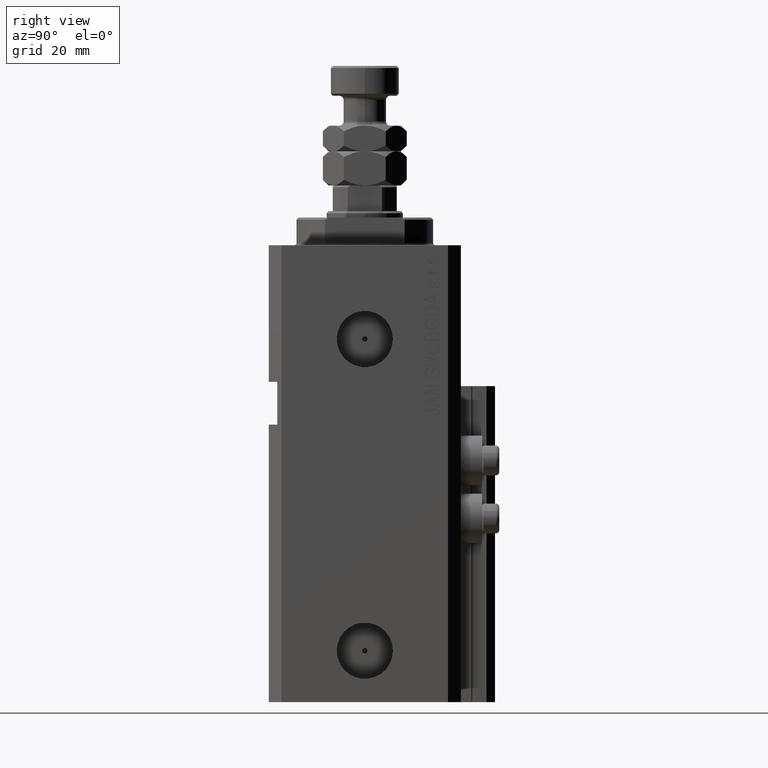
[diagram: clean part render]
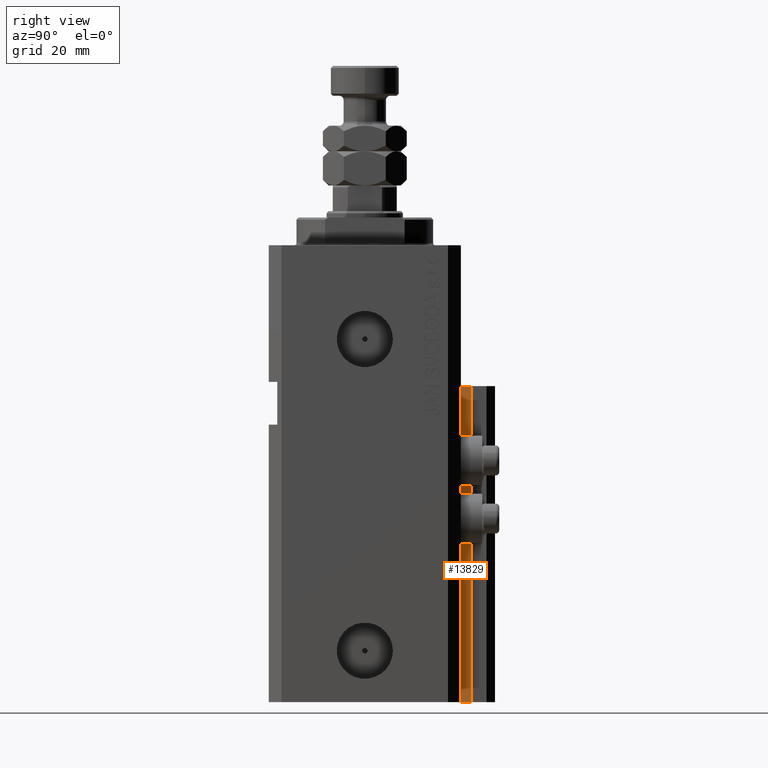
[diagram: same view with one face highlighted and labeled with its STEP entity id]
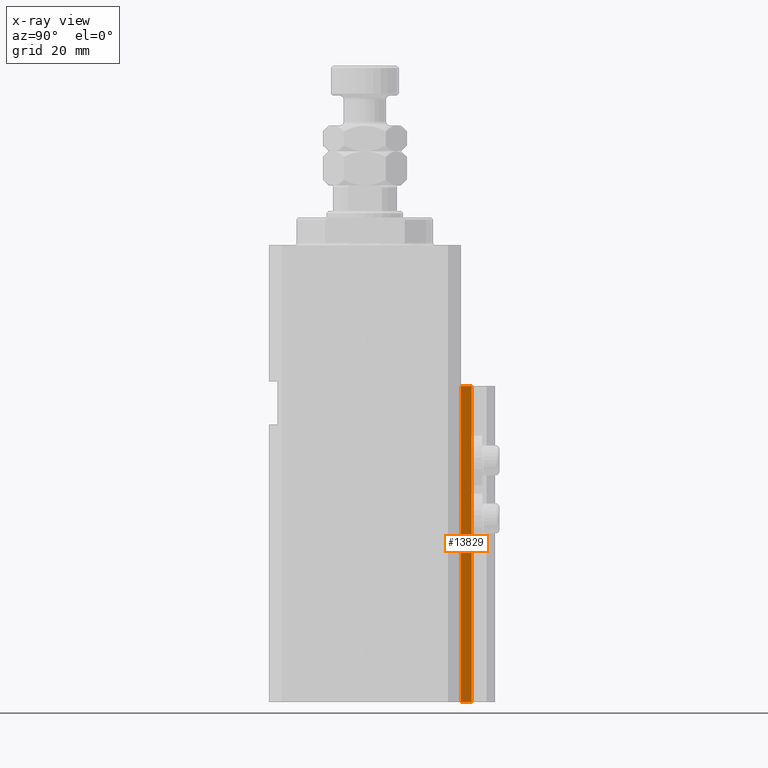
[diagram: x-ray of the same camera — body ghosted, the highlighted face saturated]
A machine part, right view. The second image highlights one B-rep face of the part: STEP entity #13829.
The next image is the same camera in x-ray: the body ghosted, the highlighted face saturated — about 0% of this face is hidden behind the body in this view.
In plain terms, the highlighted planar face has unit normal (1, -0, 0).
Its self-contained STEP definition (entity closure, byte-faithful):
#945 = VECTOR ( 'NONE', #25712, 1000.000000000000000 ) ;
#1124 = PLANE ( 'NONE',  #38422 ) ;
#1562 = CARTESIAN_POINT ( 'NONE',  ( 14.49999999999999645, 22.49999999999949907, -33.00000000000000000 ) ) ;
#2469 = VECTOR ( 'NONE', #25017, 1000.000000000000000 ) ;
#2482 = CARTESIAN_POINT ( 'NONE',  ( 14.49999999999999822, 24.99999999999950617, -107.0000000000000000 ) ) ;
#2545 = EDGE_CURVE ( 'NONE', #28324, #6490, #42234, .T. ) ;
#3893 = DIRECTION ( 'NONE',  ( 6.938893903907212600E-16, 1.000000000000000000, 0.000000000000000000 ) ) ;
#6490 = VERTEX_POINT ( 'NONE', #2482 ) ;
#7572 = ORIENTED_EDGE ( 'NONE', *, *, #31627, .T. ) ;
#8446 = CARTESIAN_POINT ( 'NONE',  ( 14.49999999999999645, 22.49999999999949907, -107.0000000000000000 ) ) ;
#8701 = FACE_OUTER_BOUND ( 'NONE', #16958, .T. ) ;
#10279 = CARTESIAN_POINT ( 'NONE',  ( 14.49999999999999645, 22.49999999999949907, -107.0000000000000000 ) ) ;
#13208 = VECTOR ( 'NONE', #39336, 1000.000000000000000 ) ;
#13829 = ADVANCED_FACE ( 'NONE', ( #8701 ), #1124, .T. ) ;
#14030 = ORIENTED_EDGE ( 'NONE', *, *, #2545, .T. ) ;
#14587 = CARTESIAN_POINT ( 'NONE',  ( 14.49999999999999645, 22.49999999999949907, -107.0000000000000000 ) ) ;
#16958 = EDGE_LOOP ( 'NONE', ( #19334, #39853, #14030, #7572 ) ) ;
#19334 = ORIENTED_EDGE ( 'NONE', *, *, #25290, .F. ) ;
#20057 = DIRECTION ( 'NONE',  ( 6.938893903907212600E-16, 1.000000000000000000, 0.000000000000000000 ) ) ;
#22937 = LINE ( 'NONE', #38343, #13208 ) ;
#23046 = VERTEX_POINT ( 'NONE', #46590 ) ;
#23836 = DIRECTION ( 'NONE',  ( 1.000000000000000000, -6.938893903907212600E-16, 0.000000000000000000 ) ) ;
#25017 = DIRECTION ( 'NONE',  ( 6.938893903907212600E-16, 1.000000000000000000, 0.000000000000000000 ) ) ;
#25290 = EDGE_CURVE ( 'NONE', #30884, #23046, #40159, .T. ) ;
#25712 = DIRECTION ( 'NONE',  ( 0.000000000000000000, 0.000000000000000000, 1.000000000000000000 ) ) ;
#26222 = EDGE_CURVE ( 'NONE', #28324, #30884, #49401, .T. ) ;
#28324 = VERTEX_POINT ( 'NONE', #10279 ) ;
#29800 = CARTESIAN_POINT ( 'NONE',  ( 14.49999999999999645, 22.49999999999949907, -33.00000000000000000 ) ) ;
#30884 = VERTEX_POINT ( 'NONE', #29800 ) ;
#31627 = EDGE_CURVE ( 'NONE', #6490, #23046, #22937, .T. ) ;
#32505 = VECTOR ( 'NONE', #3893, 1000.000000000000000 ) ;
#38343 = CARTESIAN_POINT ( 'NONE',  ( 14.49999999999999822, 24.99999999999950617, -107.0000000000000000 ) ) ;
#38422 = AXIS2_PLACEMENT_3D ( 'NONE', #8446, #23836, #20057 ) ;
#39336 = DIRECTION ( 'NONE',  ( 0.000000000000000000, 0.000000000000000000, 1.000000000000000000 ) ) ;
#39853 = ORIENTED_EDGE ( 'NONE', *, *, #26222, .F. ) ;
#40159 = LINE ( 'NONE', #1562, #2469 ) ;
#42234 = LINE ( 'NONE', #45269, #32505 ) ;
#45269 = CARTESIAN_POINT ( 'NONE',  ( 14.49999999999999645, 22.49999999999949907, -107.0000000000000000 ) ) ;
#46590 = CARTESIAN_POINT ( 'NONE',  ( 14.49999999999999822, 24.99999999999950617, -33.00000000000000000 ) ) ;
#49401 = LINE ( 'NONE', #14587, #945 ) ;